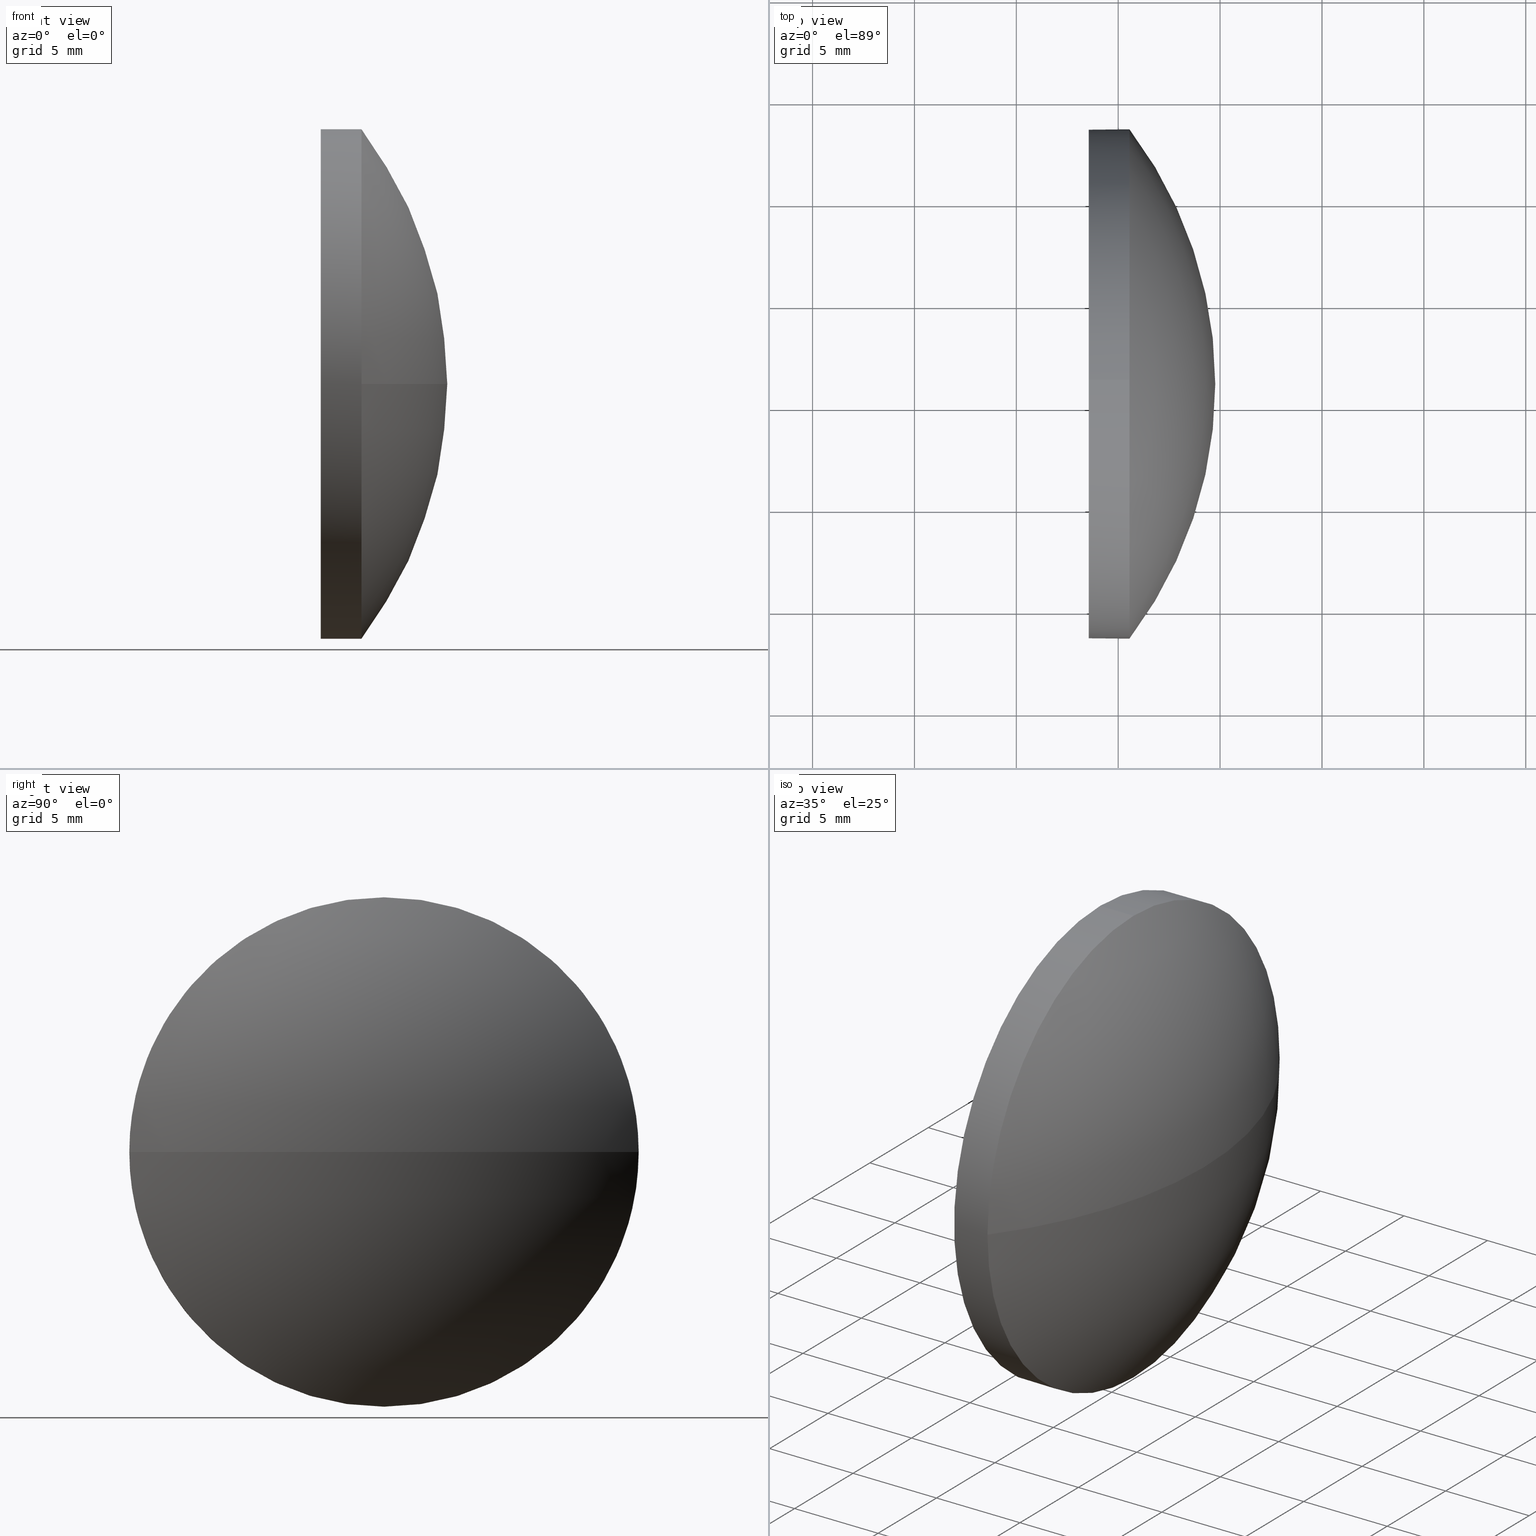
[diagram: canonical four-view strip — front | top / right | iso, engineering-drawing reading convention]
A machine part, canonical four-view strip (front | top / right | iso — engineering-drawing reading convention). The complete STEP part file that produces these views, byte-faithful:
ISO-10303-21;
HEADER;
FILE_DESCRIPTION (( 'STEP AP214' ),
    '1' );
FILE_NAME ('100039.STEP',
    '2019-04-25T08:46:26',
    ( '' ),
    ( '' ),
    'SwSTEP 2.0',
    'SolidWorks 2016',
    '' );
FILE_SCHEMA (( 'AUTOMOTIVE_DESIGN' ));
ENDSEC;

DATA;
#1 = EDGE_CURVE ( 'NONE', #61, #33, #84, .T. ) ;
#2 = CARTESIAN_POINT ( 'NONE',  ( 565.5535889143861800, 143.5724403089787700, -1.530808498934189200E-015 ) ) ;
#3 = VECTOR ( 'NONE', #138, 1000.000000000000000 ) ;
#4 = ORIENTED_EDGE ( 'NONE', *, *, #58, .T. ) ;
#5 = AXIS2_PLACEMENT_3D ( 'NONE', #68, #126, #48 ) ;
#6 = DIRECTION ( 'NONE',  ( -1.000000000000000000, -0.0000000000000000000, -0.0000000000000000000 ) ) ;
#7 = CARTESIAN_POINT ( 'NONE',  ( 563.5535889143861800, 156.0724403089788000, 12.50000000000001100 ) ) ;
#8 = PRODUCT_RELATED_PRODUCT_CATEGORY ( 'part', '', ( #43 ) ) ;
#9 = CIRCLE ( 'NONE', #76, 12.50000000000001100 ) ;
#10 = SURFACE_STYLE_FILL_AREA ( #34 ) ;
#11 = ADVANCED_FACE ( 'NONE', ( #153 ), #87, .T. ) ;
#12 = PRODUCT_CONTEXT ( 'NONE', #113, 'mechanical' ) ;
#13 = ORIENTED_EDGE ( 'NONE', *, *, #32, .T. ) ;
#14 = EDGE_CURVE ( 'NONE', #143, #108, #185, .T. ) ;
#15 = CARTESIAN_POINT ( 'NONE',  ( 549.1015817884954200, 156.0724403089787700, 0.0000000000000000000 ) ) ;
#16 = PRESENTATION_STYLE_ASSIGNMENT (( #85 ) ) ;
#17 = DIRECTION ( 'NONE',  ( 0.0000000000000000000, 1.000000000000000000, 0.0000000000000000000 ) ) ;
#18 = PRODUCT_DEFINITION_CONTEXT ( 'detailed design', #80, 'design' ) ;
#19 = DIRECTION ( 'NONE',  ( 0.0000000000000000000, 0.0000000000000000000, 1.000000000000000000 ) ) ;
#20 = UNCERTAINTY_MEASURE_WITH_UNIT (LENGTH_MEASURE( 1.000000000000000100E-005 ), #45, 'distance_accuracy_value', 'NONE');
#21 = EDGE_LOOP ( 'NONE', ( #103, #13 ) ) ;
#22 = DIRECTION ( 'NONE',  ( -1.000000000000000000, -0.0000000000000000000, -0.0000000000000000000 ) ) ;
#23 = AXIS2_PLACEMENT_3D ( 'NONE', #146, #169, #95 ) ;
#24 = CARTESIAN_POINT ( 'NONE',  ( 565.5535889143861800, 156.0724403089788000, 0.0000000000000000000 ) ) ;
#25 = CYLINDRICAL_SURFACE ( 'NONE', #104, 12.50000000000001100 ) ;
#26 = EDGE_LOOP ( 'NONE', ( #62, #4, #136, #177 ) ) ;
#27 = APPLICATION_PROTOCOL_DEFINITION ( 'draft international standard', 'automotive_design', 1998, #113 ) ;
#28 = AXIS2_PLACEMENT_3D ( 'NONE', #15, #107, #17 ) ;
#29 = ORIENTED_EDGE ( 'NONE', *, *, #140, .T. ) ;
#30 = MANIFOLD_SOLID_BREP ( '��ת1', #31 ) ;
#31 = CLOSED_SHELL ( 'NONE', ( #186, #180, #11, #115, #81 ) ) ;
#32 = EDGE_CURVE ( 'NONE', #41, #145, #111, .T. ) ;
#33 = VERTEX_POINT ( 'NONE', #2 ) ;
#34 = FILL_AREA_STYLE ('',( #66 ) ) ;
#35 = CARTESIAN_POINT ( 'NONE',  ( 565.5535889143861800, 156.0724403089788000, 12.50000000000001100 ) ) ;
#36 = ORIENTED_EDGE ( 'NONE', *, *, #92, .T. ) ;
#37 = PRESENTATION_LAYER_ASSIGNMENT (  '', '', ( #98 ) ) ;
#38 = DIRECTION ( 'NONE',  ( 0.0000000000000000000, 1.000000000000000000, 0.0000000000000000000 ) ) ;
#39 = DIRECTION ( 'NONE',  ( 0.0000000000000000000, 0.0000000000000000000, 1.000000000000000000 ) ) ;
#40 = AXIS2_PLACEMENT_3D ( 'NONE', #114, #129, #110 ) ;
#41 = VERTEX_POINT ( 'NONE', #86 ) ;
#42 = FILL_AREA_STYLE_COLOUR ( '', #176 ) ;
#43 = PRODUCT ( '100039', '100039', '', ( #12 ) ) ;
#44 = STYLED_ITEM ( 'NONE', ( #141 ), #52 ) ;
#45 =( LENGTH_UNIT ( ) NAMED_UNIT ( * ) SI_UNIT ( .MILLI., .METRE. ) );
#46 = SURFACE_SIDE_STYLE ('',( #72 ) ) ;
#47 = AXIS2_PLACEMENT_3D ( 'NONE', #130, #173, #161 ) ;
#48 = DIRECTION ( 'NONE',  ( 1.000000000000000000, 0.0000000000000000000, 0.0000000000000000000 ) ) ;
#49 = MECHANICAL_DESIGN_GEOMETRIC_PRESENTATION_REPRESENTATION (  '', ( #98 ), #106 ) ;
#50 =( LENGTH_UNIT ( ) NAMED_UNIT ( * ) SI_UNIT ( .MILLI., .METRE. ) );
#51 = EDGE_LOOP ( 'NONE', ( #183, #29, #105, #73, #118 ) ) ;
#52 = ADVANCED_BREP_SHAPE_REPRESENTATION ( '100039', ( #30, #131 ), #170 ) ;
#53 = CARTESIAN_POINT ( 'NONE',  ( 569.7635889143862200, 156.0724403089787700, 0.0000000000000000000 ) ) ;
#54 = CARTESIAN_POINT ( 'NONE',  ( 563.5535889143861800, 156.0724403089788000, 0.0000000000000000000 ) ) ;
#55 = VERTEX_POINT ( 'NONE', #35 ) ;
#56 = PRODUCT_DEFINITION_FORMATION_WITH_SPECIFIED_SOURCE ( '�κ�', '', #43, .NOT_KNOWN. ) ;
#57 = PRODUCT_DEFINITION_SHAPE ( 'NONE', 'NONE',  #82 ) ;
#58 = EDGE_CURVE ( 'NONE', #143, #33, #135, .T. ) ;
#59 = SPHERICAL_SURFACE ( 'NONE', #137, 20.66200712589076400 ) ;
#60 = APPLICATION_PROTOCOL_DEFINITION ( 'draft international standard', 'automotive_design', 1998, #80 ) ;
#61 = VERTEX_POINT ( 'NONE', #75 ) ;
#62 = ORIENTED_EDGE ( 'NONE', *, *, #14, .F. ) ;
#63 = CARTESIAN_POINT ( 'NONE',  ( 563.5535889143861800, 156.0724403089788000, 0.0000000000000000000 ) ) ;
#64 = CIRCLE ( 'NONE', #94, 12.50000000000001100 ) ;
#65 = ORIENTED_EDGE ( 'NONE', *, *, #168, .F. ) ;
#66 = FILL_AREA_STYLE_COLOUR ( '', #165 ) ;
#67 =( NAMED_UNIT ( * ) SI_UNIT ( $, .STERADIAN. ) SOLID_ANGLE_UNIT ( ) );
#68 = CARTESIAN_POINT ( 'NONE',  ( 549.1015817884954200, 156.0724403089787700, 0.0000000000000000000 ) ) ;
#69 = DIRECTION ( 'NONE',  ( 1.000000000000000000, 0.0000000000000000000, 0.0000000000000000000 ) ) ;
#70 = DIRECTION ( 'NONE',  ( -1.000000000000000000, -0.0000000000000000000, -0.0000000000000000000 ) ) ;
#71 =( LENGTH_UNIT ( ) NAMED_UNIT ( * ) SI_UNIT ( .MILLI., .METRE. ) );
#72 = SURFACE_STYLE_FILL_AREA ( #182 ) ;
#73 = ORIENTED_EDGE ( 'NONE', *, *, #92, .F. ) ;
#74 = AXIS2_PLACEMENT_3D ( 'NONE', #63, #119, #159 ) ;
#75 = CARTESIAN_POINT ( 'NONE',  ( 565.5535889143861800, 156.0724403089788000, -12.50000000000001100 ) ) ;
#76 = AXIS2_PLACEMENT_3D ( 'NONE', #133, #154, #171 ) ;
#77 =( NAMED_UNIT ( * ) PLANE_ANGLE_UNIT ( ) SI_UNIT ( $, .RADIAN. ) );
#78 = ORIENTED_EDGE ( 'NONE', *, *, #1, .T. ) ;
#79 = SURFACE_STYLE_USAGE ( .BOTH. , #46 ) ;
#80 = APPLICATION_CONTEXT ( 'automotive_design' ) ;
#81 = ADVANCED_FACE ( 'NONE', ( #96 ), #128, .F. ) ;
#82 = PRODUCT_DEFINITION ( 'δ֪', '', #56, #18 ) ;
#83 = CYLINDRICAL_SURFACE ( 'NONE', #47, 12.50000000000001100 ) ;
#84 = CIRCLE ( 'NONE', #23, 12.50000000000001100 ) ;
#85 = SURFACE_STYLE_USAGE ( .BOTH. , #127 ) ;
#86 = CARTESIAN_POINT ( 'NONE',  ( 563.5535889143861800, 156.0724403089788000, -12.50000000000001100 ) ) ;
#87 = SPHERICAL_SURFACE ( 'NONE', #28, 20.66200712589076400 ) ;
#88 = DIRECTION ( 'NONE',  ( -1.000000000000000000, -0.0000000000000000000, -0.0000000000000000000 ) ) ;
#89 = CARTESIAN_POINT ( 'NONE',  ( 0.0000000000000000000, 0.0000000000000000000, 0.0000000000000000000 ) ) ;
#90 = AXIS2_PLACEMENT_3D ( 'NONE', #120, #69, #163 ) ;
#91 =( NAMED_UNIT ( * ) PLANE_ANGLE_UNIT ( ) SI_UNIT ( $, .RADIAN. ) );
#92 = EDGE_CURVE ( 'NONE', #55, #145, #184, .T. ) ;
#93 = FACE_OUTER_BOUND ( 'NONE', #51, .T. ) ;
#94 = AXIS2_PLACEMENT_3D ( 'NONE', #24, #88, #39 ) ;
#95 = DIRECTION ( 'NONE',  ( 0.0000000000000000000, 0.0000000000000000000, 1.000000000000000000 ) ) ;
#96 = FACE_OUTER_BOUND ( 'NONE', #21, .T. ) ;
#97 = PRESENTATION_LAYER_ASSIGNMENT (  '', '', ( #44 ) ) ;
#98 = STYLED_ITEM ( 'NONE', ( #16 ), #30 ) ;
#99 = FACE_OUTER_BOUND ( 'NONE', #26, .T. ) ;
#100 = CARTESIAN_POINT ( 'NONE',  ( 562.0415576724963100, 156.0724403089788000, -12.50000000000001100 ) ) ;
#101 = CIRCLE ( 'NONE', #150, 12.50000000000001100 ) ;
#102 = ORIENTED_EDGE ( 'NONE', *, *, #168, .T. ) ;
#103 = ORIENTED_EDGE ( 'NONE', *, *, #166, .T. ) ;
#104 = AXIS2_PLACEMENT_3D ( 'NONE', #132, #22, #164 ) ;
#105 = ORIENTED_EDGE ( 'NONE', *, *, #166, .F. ) ;
#106 =( GEOMETRIC_REPRESENTATION_CONTEXT ( 3 ) GLOBAL_UNCERTAINTY_ASSIGNED_CONTEXT ( ( #156 ) ) GLOBAL_UNIT_ASSIGNED_CONTEXT ( ( #50, #147, #67 ) ) REPRESENTATION_CONTEXT ( 'NONE', 'WORKASPACE' ) );
#107 = DIRECTION ( 'NONE',  ( -0.0000000000000000000, 0.0000000000000000000, -1.000000000000000000 ) ) ;
#108 = VERTEX_POINT ( 'NONE', #109 ) ;
#109 = CARTESIAN_POINT ( 'NONE',  ( 565.5535889143861800, 168.5724403089787700, 0.0000000000000000000 ) ) ;
#110 = DIRECTION ( 'NONE',  ( 0.0000000000000000000, 1.000000000000000000, 1.224646799147353700E-016 ) ) ;
#111 = CIRCLE ( 'NONE', #74, 12.50000000000001100 ) ;
#112 = ORIENTED_EDGE ( 'NONE', *, *, #32, .F. ) ;
#113 = APPLICATION_CONTEXT ( 'automotive_design' ) ;
#114 = CARTESIAN_POINT ( 'NONE',  ( 549.1015817884954200, 156.0724403089787700, 0.0000000000000000000 ) ) ;
#115 = ADVANCED_FACE ( 'NONE', ( #162 ), #25, .T. ) ;
#116 = EDGE_LOOP ( 'NONE', ( #149, #78, #102, #36, #112 ) ) ;
#117 = LINE ( 'NONE', #100, #144 ) ;
#118 = ORIENTED_EDGE ( 'NONE', *, *, #172, .T. ) ;
#119 = DIRECTION ( 'NONE',  ( -1.000000000000000000, -0.0000000000000000000, -0.0000000000000000000 ) ) ;
#120 = CARTESIAN_POINT ( 'NONE',  ( 563.5535889143861800, 156.0724403089788000, 0.0000000000000000000 ) ) ;
#121 = CARTESIAN_POINT ( 'NONE',  ( 549.1015817884954200, 156.0724403089787700, 0.0000000000000000000 ) ) ;
#122 = DIRECTION ( 'NONE',  ( 0.0000000000000000000, 0.0000000000000000000, 1.000000000000000000 ) ) ;
#123 = CARTESIAN_POINT ( 'NONE',  ( 562.0415576724963100, 156.0724403089788000, 12.50000000000001100 ) ) ;
#124 = DIRECTION ( 'NONE',  ( 1.000000000000000000, 0.0000000000000000000, 0.0000000000000000000 ) ) ;
#125 =( NAMED_UNIT ( * ) SI_UNIT ( $, .STERADIAN. ) SOLID_ANGLE_UNIT ( ) );
#126 = DIRECTION ( 'NONE',  ( -0.0000000000000000000, 0.0000000000000000000, 1.000000000000000000 ) ) ;
#127 = SURFACE_SIDE_STYLE ('',( #10 ) ) ;
#128 = PLANE ( 'NONE',  #90 ) ;
#129 = DIRECTION ( 'NONE',  ( 0.0000000000000000000, 1.224646799147353200E-016, -1.000000000000000000 ) ) ;
#130 = CARTESIAN_POINT ( 'NONE',  ( 562.0415576724963100, 156.0724403089788000, 0.0000000000000000000 ) ) ;
#131 = AXIS2_PLACEMENT_3D ( 'NONE', #89, #155, #124 ) ;
#132 = CARTESIAN_POINT ( 'NONE',  ( 562.0415576724963100, 156.0724403089788000, 0.0000000000000000000 ) ) ;
#133 = CARTESIAN_POINT ( 'NONE',  ( 565.5535889143861800, 156.0724403089788000, 0.0000000000000000000 ) ) ;
#134 = AXIS2_PLACEMENT_3D ( 'NONE', #54, #70, #122 ) ;
#135 = CIRCLE ( 'NONE', #40, 20.66200712589075300 ) ;
#136 = ORIENTED_EDGE ( 'NONE', *, *, #1, .F. ) ;
#137 = AXIS2_PLACEMENT_3D ( 'NONE', #121, #152, #38 ) ;
#138 = DIRECTION ( 'NONE',  ( -1.000000000000000000, -0.0000000000000000000, -0.0000000000000000000 ) ) ;
#139 = EDGE_LOOP ( 'NONE', ( #160, #142, #167, #65 ) ) ;
#140 = EDGE_CURVE ( 'NONE', #61, #41, #117, .T. ) ;
#141 = PRESENTATION_STYLE_ASSIGNMENT (( #79 ) ) ;
#142 = ORIENTED_EDGE ( 'NONE', *, *, #14, .T. ) ;
#143 = VERTEX_POINT ( 'NONE', #53 ) ;
#144 = VECTOR ( 'NONE', #151, 1000.000000000000000 ) ;
#145 = VERTEX_POINT ( 'NONE', #7 ) ;
#146 = CARTESIAN_POINT ( 'NONE',  ( 565.5535889143861800, 156.0724403089788000, 0.0000000000000000000 ) ) ;
#147 =( NAMED_UNIT ( * ) PLANE_ANGLE_UNIT ( ) SI_UNIT ( $, .RADIAN. ) );
#148 = CIRCLE ( 'NONE', #134, 12.50000000000001100 ) ;
#149 = ORIENTED_EDGE ( 'NONE', *, *, #140, .F. ) ;
#150 = AXIS2_PLACEMENT_3D ( 'NONE', #179, #6, #19 ) ;
#151 = DIRECTION ( 'NONE',  ( -1.000000000000000000, -0.0000000000000000000, -0.0000000000000000000 ) ) ;
#152 = DIRECTION ( 'NONE',  ( -0.0000000000000000000, 0.0000000000000000000, -1.000000000000000000 ) ) ;
#153 = FACE_OUTER_BOUND ( 'NONE', #139, .T. ) ;
#154 = DIRECTION ( 'NONE',  ( -1.000000000000000000, -0.0000000000000000000, -0.0000000000000000000 ) ) ;
#155 = DIRECTION ( 'NONE',  ( 0.0000000000000000000, 0.0000000000000000000, 1.000000000000000000 ) ) ;
#156 = UNCERTAINTY_MEASURE_WITH_UNIT (LENGTH_MEASURE( 1.000000000000000100E-005 ), #50, 'distance_accuracy_value', 'NONE');
#157 = SHAPE_DEFINITION_REPRESENTATION ( #57, #52 ) ;
#158 = MECHANICAL_DESIGN_GEOMETRIC_PRESENTATION_REPRESENTATION (  '', ( #44 ), #181 ) ;
#159 = DIRECTION ( 'NONE',  ( 0.0000000000000000000, 0.0000000000000000000, 1.000000000000000000 ) ) ;
#160 = ORIENTED_EDGE ( 'NONE', *, *, #58, .F. ) ;
#161 = DIRECTION ( 'NONE',  ( 0.0000000000000000000, 0.0000000000000000000, 1.000000000000000000 ) ) ;
#162 = FACE_OUTER_BOUND ( 'NONE', #116, .T. ) ;
#163 = DIRECTION ( 'NONE',  ( 0.0000000000000000000, 0.0000000000000000000, -1.000000000000000000 ) ) ;
#164 = DIRECTION ( 'NONE',  ( 0.0000000000000000000, 0.0000000000000000000, 1.000000000000000000 ) ) ;
#165 = COLOUR_RGB ( '',1.000000000000000000, 1.000000000000000000, 1.000000000000000000 ) ;
#166 = EDGE_CURVE ( 'NONE', #145, #41, #148, .T. ) ;
#167 = ORIENTED_EDGE ( 'NONE', *, *, #172, .F. ) ;
#168 = EDGE_CURVE ( 'NONE', #33, #55, #9, .T. ) ;
#169 = DIRECTION ( 'NONE',  ( -1.000000000000000000, -0.0000000000000000000, -0.0000000000000000000 ) ) ;
#170 =( GEOMETRIC_REPRESENTATION_CONTEXT ( 3 ) GLOBAL_UNCERTAINTY_ASSIGNED_CONTEXT ( ( #174 ) ) GLOBAL_UNIT_ASSIGNED_CONTEXT ( ( #71, #91, #175 ) ) REPRESENTATION_CONTEXT ( 'NONE', 'WORKASPACE' ) );
#171 = DIRECTION ( 'NONE',  ( 0.0000000000000000000, 0.0000000000000000000, 1.000000000000000000 ) ) ;
#172 = EDGE_CURVE ( 'NONE', #55, #108, #64, .T. ) ;
#173 = DIRECTION ( 'NONE',  ( -1.000000000000000000, -0.0000000000000000000, -0.0000000000000000000 ) ) ;
#174 = UNCERTAINTY_MEASURE_WITH_UNIT (LENGTH_MEASURE( 1.000000000000000100E-005 ), #71, 'distance_accuracy_value', 'NONE');
#175 =( NAMED_UNIT ( * ) SI_UNIT ( $, .STERADIAN. ) SOLID_ANGLE_UNIT ( ) );
#176 = COLOUR_RGB ( '',1.000000000000000000, 1.000000000000000000, 1.000000000000000000 ) ;
#177 = ORIENTED_EDGE ( 'NONE', *, *, #178, .F. ) ;
#178 = EDGE_CURVE ( 'NONE', #108, #61, #101, .T. ) ;
#179 = CARTESIAN_POINT ( 'NONE',  ( 565.5535889143861800, 156.0724403089788000, 0.0000000000000000000 ) ) ;
#180 = ADVANCED_FACE ( 'NONE', ( #99 ), #59, .T. ) ;
#181 =( GEOMETRIC_REPRESENTATION_CONTEXT ( 3 ) GLOBAL_UNCERTAINTY_ASSIGNED_CONTEXT ( ( #20 ) ) GLOBAL_UNIT_ASSIGNED_CONTEXT ( ( #45, #77, #125 ) ) REPRESENTATION_CONTEXT ( 'NONE', 'WORKASPACE' ) );
#182 = FILL_AREA_STYLE ('',( #42 ) ) ;
#183 = ORIENTED_EDGE ( 'NONE', *, *, #178, .T. ) ;
#184 = LINE ( 'NONE', #123, #3 ) ;
#185 = CIRCLE ( 'NONE', #5, 20.66200712589072500 ) ;
#186 = ADVANCED_FACE ( 'NONE', ( #93 ), #83, .T. ) ;
ENDSEC;
END-ISO-10303-21;
